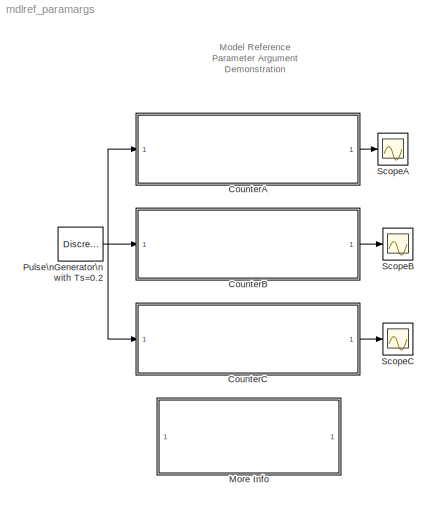
MODEL mdlref_paramargs
KIND model
BLOCK [ModelReference] CounterA
  CopyOfModelName = mdlref_counter_paramargs
  DefaultDataLogging = off
  ModelName = mdlref_counter_paramargs
  ModelReferenceVersion = 1.97
  ParameterArgumentNames = lower_saturation_limit,upper_saturation_limit
  ParameterArgumentValues = 0,20
  Ports = [1, 1]
BLOCK [ModelReference] CounterB
  CopyOfModelName = mdlref_counter_paramargs
  DefaultDataLogging = off
  ModelName = mdlref_counter_paramargs
  ModelReferenceVersion = 1.97
  ParameterArgumentNames = lower_saturation_limit,upper_saturation_limit
  ParameterArgumentValues = 0,10
  Ports = [1, 1]
BLOCK [ModelReference] CounterC
  CopyOfModelName = mdlref_counter_paramargs
  DefaultDataLogging = off
  ModelName = mdlref_counter_paramargs
  ModelReferenceVersion = 1.97
  ParameterArgumentNames = lower_saturation_limit,upper_saturation_limit
  ParameterArgumentValues = 0,5
  Ports = [1, 1]
BLOCK [SubSystem] More Info
  MaskDisplay = disp('Double click here \\nfor a step-by-step\\ntutorial on this model')
  MaskIconFrame = on
  MaskIconOpaque = on
  MaskIconRotate = none
  MaskIconUnits = autoscale
  MinAlgLoopOccurrences = off
  OpenFcn = mdlref_paramargsscript
  Ports = []
  PropExecContextAcrossSSBoundary = on
  RTWSystemCode = Auto
  TreatAsAtomicUnit = off
BLOCK [DiscretePulseGenerator] Pulse\nGenerator\n with Ts=0.2
  Ports = [0, 1]
  SampleTime = 0.1
  VectorParams1D = off
BLOCK [Scope] ScopeA
  DataFormat = StructureWithTime
  LimitDataPoints = off
  NumInputPorts = 1
  Ports = [1]
  SaveName = ScopeDataA
  SaveToWorkspace = on
  TimeRange = 10
  YMax = 21
  YMin = -1
  ZoomMode = yonly
BLOCK [Scope] ScopeB
  DataFormat = StructureWithTime
  LimitDataPoints = off
  NumInputPorts = 1
  Ports = [1]
  SaveName = ScopeDataB
  SaveToWorkspace = on
  TimeRange = 10
  YMax = 21
  YMin = -1
  ZoomMode = yonly
BLOCK [Scope] ScopeC
  DataFormat = StructureWithTime
  LimitDataPoints = off
  NumInputPorts = 1
  Ports = [1]
  SaveName = ScopeDataC
  SaveToWorkspace = on
  TimeRange = 10
  YMax = 21
  YMin = -1
  ZoomMode = yonly
ANNOTATION (root): Model Reference \nParameter Argument \nDemonstration
ANNOTATION More Info: Bus Block Demonstration
ANNOTATION More Info: This demonstration shows how signals may be grouped and ungrouped while\nretaining their names. In this demonstration, 5 signals are created and labelled\nappropriately. These signals are then mux'd together to create a bus of signals.\nThis bus of signals is then fed into the Bus Selector block. Inside of the Bus \nSelector block, the Pulse and Chirp signals are chosen to be output from the \nori...<+125ch>
LINE CounterA:1 -> ScopeA:1
LINE CounterB:1 -> ScopeB:1
LINE CounterC:1 -> ScopeC:1
NET Pulse\nGenerator\n with Ts=0.2:1 -> CounterA:1, CounterB:1, CounterC:1
note: NET lines group one-source signal fan-out (src -> all destinations, sorted); 1:1 wires keep LINE
